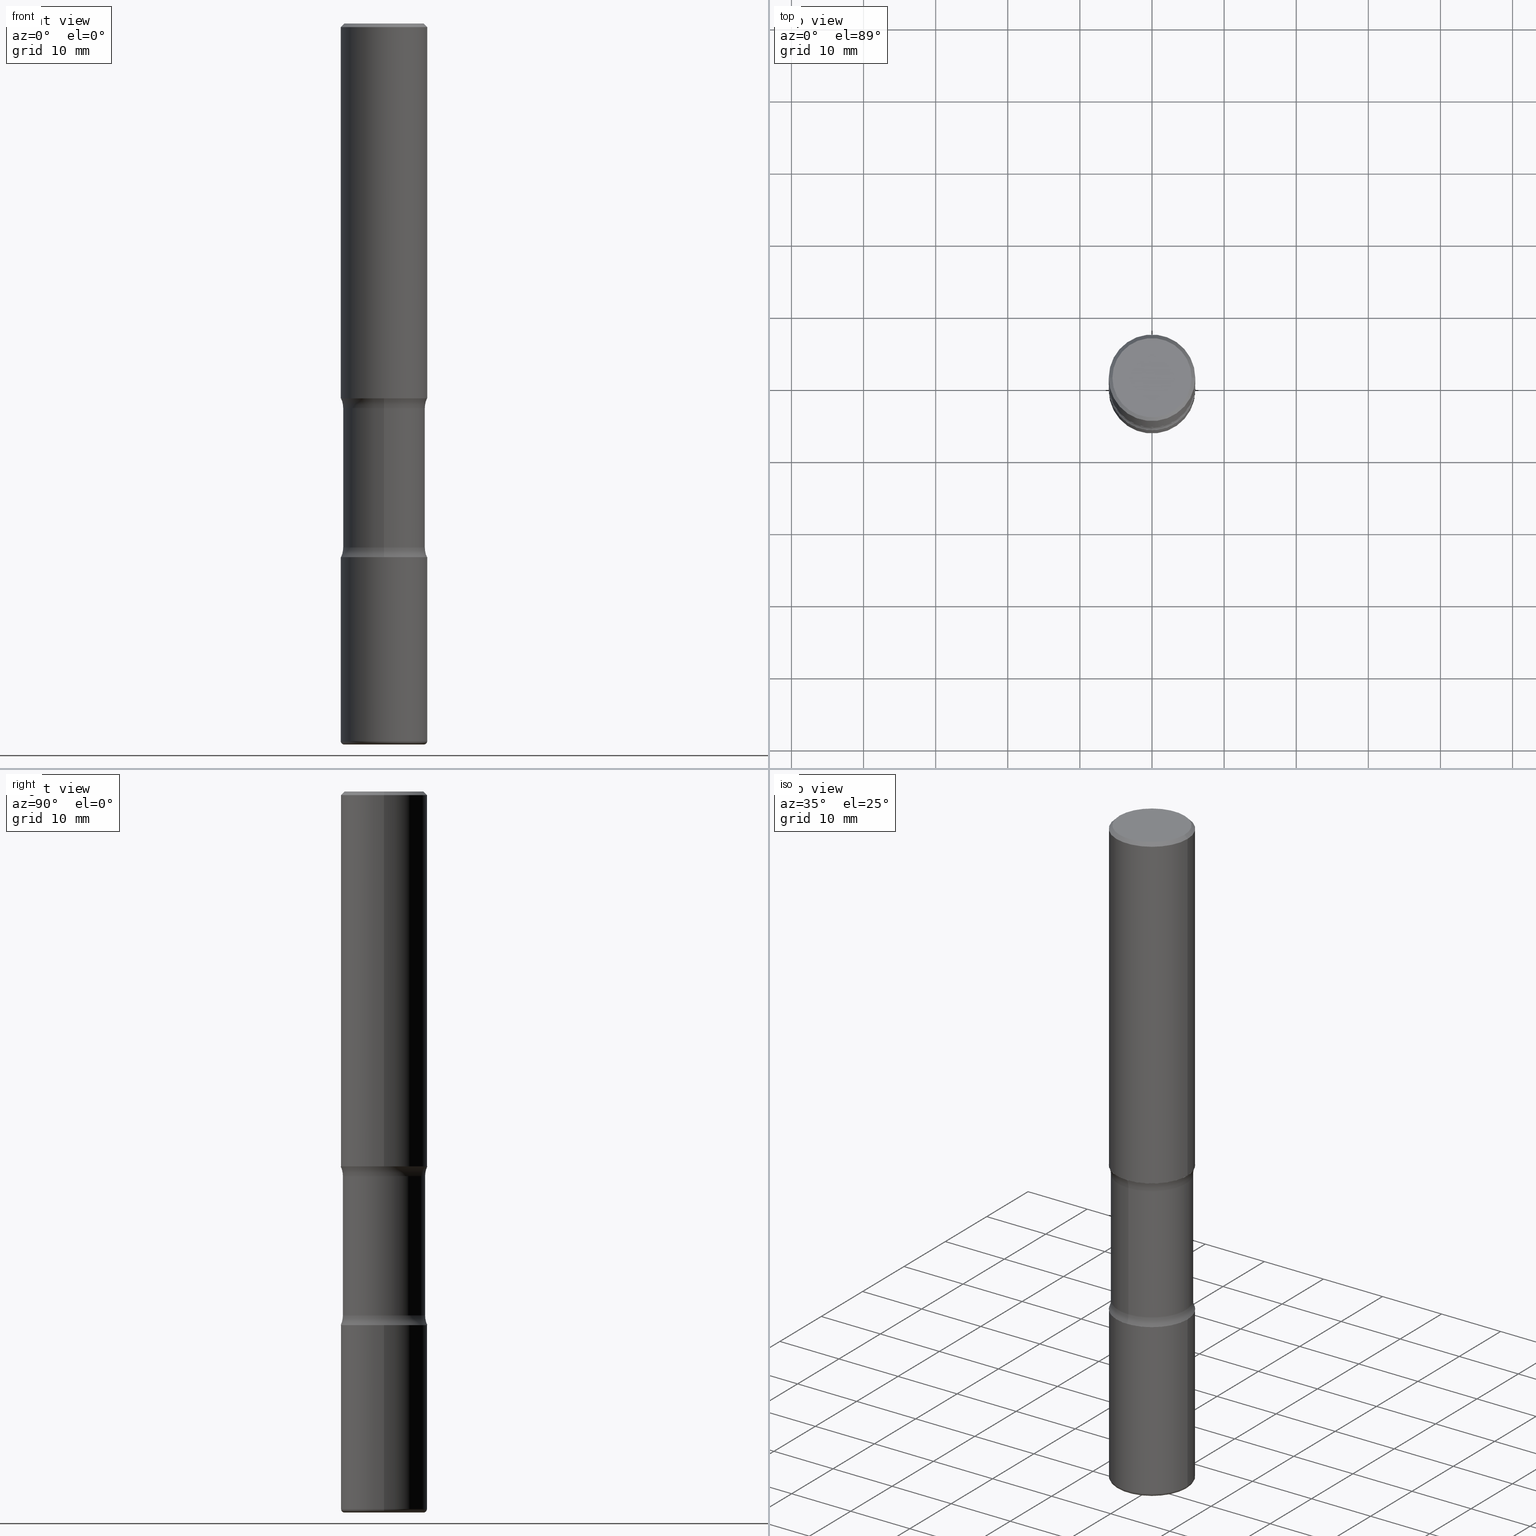
[diagram: canonical four-view strip — front | top / right | iso, engineering-drawing reading convention]
A machine part, canonical four-view strip (front | top / right | iso — engineering-drawing reading convention). The complete STEP part file that produces these views, byte-faithful:
ISO-10303-21;
HEADER;
FILE_DESCRIPTION (( 'STEP AP203' ),
    '1' );
FILE_NAME ('47690.STEP',
    '2024-03-02T07:14:34',
    ( '' ),
    ( '' ),
    'SwSTEP 2.0',
    'SolidWorks 2023',
    '' );
FILE_SCHEMA (( 'CONFIG_CONTROL_DESIGN' ));
ENDSEC;

DATA;
#1 = CARTESIAN_POINT ( 'NONE',  ( 7.124628819939777829E-29, -1.017208173258562247E-14, -2.913400000000000212 ) ) ;
#2 = ORIENTED_EDGE ( 'NONE', *, *, #36, .T. ) ;
#3 = PERSON_AND_ORGANIZATION_ROLE ( 'classification_officer' ) ;
#4 = ORIENTED_EDGE ( 'NONE', *, *, #546, .T. ) ;
#5 = DIRECTION ( 'NONE',  ( 2.525985086076564115E-29, -3.376177443336566513E-15, -1.000000000000000000 ) ) ;
#6 = TOROIDAL_SURFACE ( 'NONE', #91, 0.3493999999999999884, 0.1250000000000000000 ) ;
#7 = CIRCLE ( 'NONE', #21, 0.2361999999999998823 ) ;
#8 = VERTEX_POINT ( 'NONE', #67 ) ;
#9 = ADVANCED_FACE ( 'NONE', ( #461 ), #27, .T. ) ;
#10 = DIRECTION ( 'NONE',  ( -2.445468806185136597E-29, 3.491481338843145583E-15, 1.000000000000000000 ) ) ;
#11 = CARTESIAN_POINT ( 'NONE',  ( -0.2165000000000001368, -1.210325745744487227E-14, -3.937000000000000277 ) ) ;
#12 = DIRECTION ( 'NONE',  ( 6.982962677686265922E-15, 1.000000000000000000, -3.469747663417773452E-15 ) ) ;
#13 = ORIENTED_EDGE ( 'NONE', *, *, #554, .F. ) ;
#14 = DIRECTION ( 'NONE',  ( -2.445468806185136597E-29, 3.491481338843145583E-15, 1.000000000000000000 ) ) ;
#15 = APPROVAL_ROLE ( '' ) ;
#16 = DIRECTION ( 'NONE',  ( -2.445468806185136597E-29, 3.491481338843145583E-15, 1.000000000000000000 ) ) ;
#17 = CYLINDRICAL_SURFACE ( 'NONE', #130, 0.2362000000000001321 ) ;
#18 = VECTOR ( 'NONE', #499, 39.37007874015748143 ) ;
#19 = DIRECTION ( 'NONE',  ( 1.000000000000000000, -6.982962677686262766E-15, 0.000000000000000000 ) ) ;
#20 = CIRCLE ( 'NONE', #140, 0.2362000000000001321 ) ;
#21 = AXIS2_PLACEMENT_3D ( 'NONE', #92, #16, #356 ) ;
#22 = ORIENTED_EDGE ( 'NONE', *, *, #134, .T. ) ;
#23 = PLANE ( 'NONE',  #65 ) ;
#24 = DIRECTION ( 'NONE',  ( 2.525985086076564115E-29, -3.376177443336566513E-15, -1.000000000000000000 ) ) ;
#25 = ADVANCED_FACE ( 'NONE', ( #37 ), #371, .T. ) ;
#26 = EDGE_LOOP ( 'NONE', ( #51, #399, #323, #192 ) ) ;
#27 = PLANE ( 'NONE',  #111 ) ;
#28 = CARTESIAN_POINT ( 'NONE',  ( 1.649375784469567917E-15, 0.2361999999999899458, -2.913400000000000656 ) ) ;
#29 = CARTESIAN_POINT ( 'NONE',  ( 9.710227154047748282E-29, -1.362793696358492956E-14, -3.937000000000000277 ) ) ;
#30 = CARTESIAN_POINT ( 'NONE',  ( 9.579634954469036932E-29, -1.367717984865025539E-14, -3.917300000000000448 ) ) ;
#31 = CIRCLE ( 'NONE', #423, 0.2362000000000001598 ) ;
#32 = SECURITY_CLASSIFICATION ( '', '', #206 ) ;
#33 = CARTESIAN_POINT ( 'NONE',  ( 6.994978375559792251E-29, -9.986975258939122984E-15, -2.860383398826405354 ) ) ;
#34 = EDGE_CURVE ( 'NONE', #427, #395, #387, .T. ) ;
#35 = PRODUCT_DEFINITION_SHAPE ( 'NONE', 'NONE',  #375 ) ;
#36 = EDGE_CURVE ( 'NONE', #237, #476, #327, .T. ) ;
#37 = FACE_OUTER_BOUND ( 'NONE', #411, .T. ) ;
#38 = APPROVAL_STATUS ( 'not_yet_approved' ) ;
#39 = EDGE_CURVE ( 'NONE', #395, #155, #540, .T. ) ;
#40 = CIRCLE ( 'NONE', #359, 0.2361999999999998823 ) ;
#41 = LINE ( 'NONE', #208, #346 ) ;
#42 = DIRECTION ( 'NONE',  ( 1.000000000000000000, -6.982962677686268288E-15, 0.000000000000000000 ) ) ;
#43 = UNCERTAINTY_MEASURE_WITH_UNIT (LENGTH_MEASURE( 1.000000000000000082E-05 ), #77, 'distance_accuracy_value', 'NONE');
#44 = CALENDAR_DATE ( 2024, 2, 3 ) ;
#45 = AXIS2_PLACEMENT_3D ( 'NONE', #267, #98, #271 ) ;
#46 = AXIS2_PLACEMENT_3D ( 'NONE', #295, #514, #12 ) ;
#47 = EDGE_CURVE ( 'NONE', #464, #495, #248, .T. ) ;
#48 = CARTESIAN_POINT ( 'NONE',  ( 1.566976824872894642E-15, 0.2243999999999863049, -3.937000000000000721 ) ) ;
#49 = DIRECTION ( 'NONE',  ( 1.000000000000000000, -6.982962677686269077E-15, 0.000000000000000000 ) ) ;
#50 = FACE_OUTER_BOUND ( 'NONE', #455, .T. ) ;
#51 = ORIENTED_EDGE ( 'NONE', *, *, #467, .T. ) ;
#52 = APPROVAL_STATUS ( 'not_yet_approved' ) ;
#53 = EDGE_LOOP ( 'NONE', ( #312, #349 ) ) ;
#54 = ORIENTED_EDGE ( 'NONE', *, *, #34, .F. ) ;
#55 = ADVANCED_FACE ( 'NONE', ( #239 ), #23, .F. ) ;
#56 = AXIS2_PLACEMENT_3D ( 'NONE', #106, #14, #187 ) ;
#57 = DIRECTION ( 'NONE',  ( 2.525985086076564115E-29, -3.376177443336566513E-15, -1.000000000000000000 ) ) ;
#58 = ORIENTED_EDGE ( 'NONE', *, *, #168, .F. ) ;
#59 = CC_DESIGN_DATE_AND_TIME_ASSIGNMENT ( #350, #384, ( #32 ) ) ;
#60 = CARTESIAN_POINT ( 'NONE',  ( 9.627810689950883669E-29, -1.374596203102546341E-14, -3.937000000000000277 ) ) ;
#61 = ORIENTED_EDGE ( 'NONE', *, *, #202, .T. ) ;
#62 = CARTESIAN_POINT ( 'NONE',  ( 7.124628819939777829E-29, -1.017208173258562247E-14, -2.913400000000000212 ) ) ;
#63 = VERTEX_POINT ( 'NONE', #144 ) ;
#64 = DIRECTION ( 'NONE',  ( 6.982962677686265922E-15, 1.000000000000000000, -3.469747663417773452E-15 ) ) ;
#65 = AXIS2_PLACEMENT_3D ( 'NONE', #195, #539, #421 ) ;
#66 = AXIS2_PLACEMENT_3D ( 'NONE', #280, #24, #64 ) ;
#67 = CARTESIAN_POINT ( 'NONE',  ( 1.649375784469546815E-15, 0.2361999999999930266, -2.047200000000001019 ) ) ;
#68 = LINE ( 'NONE', #236, #119 ) ;
#69 = DIRECTION ( 'NONE',  ( 1.000000000000000000, -6.982962677686269077E-15, 0.000000000000000000 ) ) ;
#70 = DIRECTION ( 'NONE',  ( 6.982962677686265922E-15, 1.000000000000000000, -2.313165108945183485E-15 ) ) ;
#71 = CARTESIAN_POINT ( 'NONE',  ( 0.000000000000000000, 0.000000000000000000, 0.000000000000000000 ) ) ;
#72 = ADVANCED_FACE ( 'NONE', ( #225 ), #404, .T. ) ;
#73 = FACE_OUTER_BOUND ( 'NONE', #115, .T. ) ;
#74 = AXIS2_PLACEMENT_3D ( 'NONE', #71, #394, #352 ) ;
#75 = AXIS2_PLACEMENT_3D ( 'NONE', #553, #79, #19 ) ;
#76 = CC_DESIGN_APPROVAL ( #170, ( #414 ) ) ;
#77 =( CONVERSION_BASED_UNIT ( 'INCH', #207 ) LENGTH_UNIT ( ) NAMED_UNIT ( #324 ) );
#78 = EDGE_CURVE ( 'NONE', #138, #63, #379, .T. ) ;
#79 = DIRECTION ( 'NONE',  ( -2.445468806185136597E-29, 3.491481338843145583E-15, 1.000000000000000000 ) ) ;
#80 = DATE_AND_TIME ( #44, #501 ) ;
#81 = AXIS2_PLACEMENT_3D ( 'NONE', #341, #10, #147 ) ;
#82 = AXIS2_PLACEMENT_3D ( 'NONE', #466, #203, #437 ) ;
#83 = PLANE ( 'NONE',  #541 ) ;
#84 = COORDINATED_UNIVERSAL_TIME_OFFSET ( 5, 0, .BEHIND. ) ;
#85 = APPLICATION_PROTOCOL_DEFINITION ( 'international standard', 'config_control_design', 1994, #87 ) ;
#86 = FACE_OUTER_BOUND ( 'NONE', #334, .T. ) ;
#87 = APPLICATION_CONTEXT ( 'configuration controlled 3d designs of mechanical parts and assemblies' ) ;
#88 = ORIENTED_EDGE ( 'NONE', *, *, #494, .T. ) ;
#89 = PERSON_AND_ORGANIZATION ( #194, #200 ) ;
#90 = CARTESIAN_POINT ( 'NONE',  ( 7.124628819939777829E-29, -1.017208173258562247E-14, -2.913400000000000212 ) ) ;
#91 = AXIS2_PLACEMENT_3D ( 'NONE', #33, #5, #183 ) ;
#92 = CARTESIAN_POINT ( 'NONE',  ( 4.890937612370289799E-31, -6.982962677686315028E-17, -0.02000000000000006981 ) ) ;
#93 = ORIENTED_EDGE ( 'NONE', *, *, #274, .T. ) ;
#94 = ADVANCED_FACE ( 'NONE', ( #288 ), #215, .T. ) ;
#95 = DIRECTION ( 'NONE',  ( 2.525985086076564115E-29, -3.376177443336566513E-15, -1.000000000000000000 ) ) ;
#96 = ORIENTED_EDGE ( 'NONE', *, *, #490, .F. ) ;
#97 = COORDINATED_UNIVERSAL_TIME_OFFSET ( 5, 0, .BEHIND. ) ;
#98 = DIRECTION ( 'NONE',  ( 7.105427357601001859E-15, 1.000000000000000000, -3.491481338843145583E-15 ) ) ;
#99 = DIRECTION ( 'NONE',  ( 2.445468806185136597E-29, -3.491481338843145583E-15, -1.000000000000000000 ) ) ;
#100 = PLANE ( 'NONE',  #104 ) ;
#101 = DIRECTION ( 'NONE',  ( -2.445468806185136877E-29, 3.491481338843145188E-15, 1.000000000000000000 ) ) ;
#102 = ORIENTED_EDGE ( 'NONE', *, *, #531, .F. ) ;
#103 = VECTOR ( 'NONE', #229, 39.37007874015748143 ) ;
#104 = AXIS2_PLACEMENT_3D ( 'NONE', #358, #127, #470 ) ;
#105 =( LENGTH_UNIT ( ) NAMED_UNIT ( * ) SI_UNIT ( $, .METRE. ) );
#106 = CARTESIAN_POINT ( 'NONE',  ( 9.579634954469036932E-29, -1.367717984865025539E-14, -3.917300000000000448 ) ) ;
#107 = PERSON_AND_ORGANIZATION_ROLE ( 'design_owner' ) ;
#108 = EDGE_CURVE ( 'NONE', #448, #237, #329, .T. ) ;
#109 = DIRECTION ( 'NONE',  ( 2.438088387897960049E-29, -3.491481338843145188E-15, -1.000000000000000000 ) ) ;
#110 = DIRECTION ( 'NONE',  ( 2.525985086076564115E-29, -3.376177443336566513E-15, -1.000000000000000000 ) ) ;
#111 = AXIS2_PLACEMENT_3D ( 'NONE', #505, #109, #429 ) ;
#112 = VECTOR ( 'NONE', #382, 39.37007874015748143 ) ;
#113 = CC_DESIGN_APPROVAL ( #426, ( #32 ) ) ;
#114 = CALENDAR_DATE ( 2024, 2, 3 ) ;
#115 = EDGE_LOOP ( 'NONE', ( #519, #392, #487, #242 ) ) ;
#116 = EDGE_CURVE ( 'NONE', #138, #265, #291, .T. ) ;
#117 = CARTESIAN_POINT ( 'NONE',  ( 0.2361999999999998823, -1.690279253850498179E-15, -0.02000000000000006981 ) ) ;
#118 = FACE_OUTER_BOUND ( 'NONE', #360, .T. ) ;
#119 = VECTOR ( 'NONE', #370, 39.37007874015748143 ) ;
#120 = EDGE_LOOP ( 'NONE', ( #150, #273 ) ) ;
#121 = APPROVAL_PERSON_ORGANIZATION ( #299, #426, #214 ) ;
#122 = CARTESIAN_POINT ( 'NONE',  ( -2.397058000421320660E-15, -0.3494000000000072048, -2.100216601173594544 ) ) ;
#123 = DIRECTION ( 'NONE',  ( 6.860497997771529985E-15, 1.000000000000000000, 0.000000000000000000 ) ) ;
#124 = DIRECTION ( 'NONE',  ( -6.982962677686265922E-15, -1.000000000000000000, 3.376177443336566513E-15 ) ) ;
#125 = ADVANCED_FACE ( 'NONE', ( #301 ), #506, .F. ) ;
#126 = PERSON_AND_ORGANIZATION ( #194, #200 ) ;
#127 = DIRECTION ( 'NONE',  ( -2.438088387897960049E-29, 3.491481338843145188E-15, 1.000000000000000000 ) ) ;
#128 = CARTESIAN_POINT ( 'NONE',  ( 0.2362000000000001321, -1.649375784469497117E-15, 1.151752954443000789E-29 ) ) ;
#129 = CARTESIAN_POINT ( 'NONE',  ( -1.579972688886734072E-15, -0.2244000000000073713, -2.100216601173594544 ) ) ;
#130 = AXIS2_PLACEMENT_3D ( 'NONE', #367, #533, #153 ) ;
#131 = DIRECTION ( 'NONE',  ( 6.982962677686265922E-15, 1.000000000000000000, -3.376177443336566513E-15 ) ) ;
#132 = EDGE_CURVE ( 'NONE', #265, #401, #220, .T. ) ;
#133 = VERTEX_POINT ( 'NONE', #272 ) ;
#134 = EDGE_CURVE ( 'NONE', #385, #268, #388, .T. ) ;
#135 = CARTESIAN_POINT ( 'NONE',  ( 0.000000000000000000, 0.000000000000000000, 0.000000000000000000 ) ) ;
#136 = ORIENTED_EDGE ( 'NONE', *, *, #234, .T. ) ;
#137 = CARTESIAN_POINT ( 'NONE',  ( 5.006363740022212241E-29, -7.147760596879688202E-15, -2.047200000000000131 ) ) ;
#138 = VERTEX_POINT ( 'NONE', #11 ) ;
#139 = AXIS2_PLACEMENT_3D ( 'NONE', #340, #99, #245 ) ;
#140 = AXIS2_PLACEMENT_3D ( 'NONE', #62, #412, #69 ) ;
#141 = AXIS2_PLACEMENT_3D ( 'NONE', #321, #431, #551 ) ;
#142 = EDGE_CURVE ( 'NONE', #133, #401, #435, .T. ) ;
#143 = ORIENTED_EDGE ( 'NONE', *, *, #173, .T. ) ;
#144 = CARTESIAN_POINT ( 'NONE',  ( 0.2165000000000001368, -1.525777345074454073E-14, -3.937000000000000277 ) ) ;
#145 = DIRECTION ( 'NONE',  ( 6.982962677686265922E-15, 1.000000000000000000, -3.376177443336566513E-15 ) ) ;
#146 = ORIENTED_EDGE ( 'NONE', *, *, #362, .T. ) ;
#147 = DIRECTION ( 'NONE',  ( 1.000000000000000000, -6.982962677686269077E-15, 0.000000000000000000 ) ) ;
#148 = DIRECTION ( 'NONE',  ( 0.000000000000000000, 0.000000000000000000, 1.000000000000000000 ) ) ;
#149 = CC_DESIGN_PERSON_AND_ORGANIZATION_ASSIGNMENT ( #524, #252, ( #414 ) ) ;
#150 = ORIENTED_EDGE ( 'NONE', *, *, #467, .F. ) ;
#151 = PERSON_AND_ORGANIZATION ( #194, #200 ) ;
#152 = ORIENTED_EDGE ( 'NONE', *, *, #290, .F. ) ;
#153 = DIRECTION ( 'NONE',  ( 1.000000000000000000, -6.982962677686266711E-15, 4.876176775795936353E-29 ) ) ;
#154 = TOROIDAL_SURFACE ( 'NONE', #174, 0.2165000000000001368, 0.01969999999999991203 ) ;
#155 = VERTEX_POINT ( 'NONE', #255 ) ;
#156 = CARTESIAN_POINT ( 'NONE',  ( -1.043851414335219820E-46, 1.490343170380447200E-32, 4.268512490100411279E-18 ) ) ;
#157 = CARTESIAN_POINT ( 'NONE',  ( 0.000000000000000000, 0.000000000000000000, 0.000000000000000000 ) ) ;
#158 = DIRECTION ( 'NONE',  ( 1.000000000000000000, -6.982962677686266711E-15, 4.876217060660159599E-29 ) ) ;
#159 = DIRECTION ( 'NONE',  ( 6.982962677686265922E-15, 1.000000000000000000, -2.434802133390609421E-15 ) ) ;
#160 = ADVANCED_FACE ( 'NONE', ( #442 ), #154, .T. ) ;
#161 = AXIS2_PLACEMENT_3D ( 'NONE', #30, #169, #525 ) ;
#162 = CARTESIAN_POINT ( 'NONE',  ( 0.2165000000000001368, -1.518899126836933270E-14, -3.917300000000000448 ) ) ;
#163 = ORIENTED_EDGE ( 'NONE', *, *, #116, .F. ) ;
#164 = MANIFOLD_SOLID_BREP ( 'Body-Move/Copy2[2]', #547 ) ;
#165 = CARTESIAN_POINT ( 'NONE',  ( 4.890937612370289799E-31, -6.982962677686315028E-17, -0.02000000000000006981 ) ) ;
#166 = CIRCLE ( 'NONE', #369, 0.1249999999999999029 ) ;
#167 = CC_DESIGN_SECURITY_CLASSIFICATION ( #32, ( #414 ) ) ;
#168 = EDGE_CURVE ( 'NONE', #395, #427, #400, .T. ) ;
#169 = DIRECTION ( 'NONE',  ( -2.445468806185136597E-29, 3.491481338843145583E-15, 1.000000000000000000 ) ) ;
#170 = APPROVAL ( #52, 'UNSPECIFIED' ) ;
#171 = PLANE ( 'NONE',  #241 ) ;
#172 = CARTESIAN_POINT ( 'NONE',  ( 5.006363740022212241E-29, -7.147760596879688202E-15, -2.047200000000000131 ) ) ;
#173 = EDGE_CURVE ( 'NONE', #495, #213, #472, .T. ) ;
#174 = AXIS2_PLACEMENT_3D ( 'NONE', #560, #526, #481 ) ;
#175 = ORIENTED_EDGE ( 'NONE', *, *, #196, .F. ) ;
#176 = PERSON_AND_ORGANIZATION_ROLE ( 'creator' ) ;
#177 = CARTESIAN_POINT ( 'NONE',  ( 9.710227154047748282E-29, -1.362793696358492956E-14, -3.937000000000000277 ) ) ;
#178 = ORIENTED_EDGE ( 'NONE', *, *, #188, .F. ) ;
#179 = CALENDAR_DATE ( 2024, 2, 3 ) ;
#180 = DIRECTION ( 'NONE',  ( -2.445468806185136597E-29, 3.491481338843145583E-15, 1.000000000000000000 ) ) ;
#181 = ORIENTED_EDGE ( 'NONE', *, *, #193, .T. ) ;
#182 = CARTESIAN_POINT ( 'NONE',  ( 0.2362000000000001321, -8.797136381349186305E-15, -2.047200000000000131 ) ) ;
#183 = DIRECTION ( 'NONE',  ( 6.982962677686265922E-15, 1.000000000000000000, -3.376177443336566513E-15 ) ) ;
#184 = LOCAL_TIME ( 2, 14, 34.00000000000000000, #509 ) ;
#185 = ORIENTED_EDGE ( 'NONE', *, *, #132, .T. ) ;
#186 = ORIENTED_EDGE ( 'NONE', *, *, #274, .F. ) ;
#187 = DIRECTION ( 'NONE',  ( 1.000000000000000000, -6.982962677686270655E-15, 4.883557194083114583E-29 ) ) ;
#188 = EDGE_CURVE ( 'NONE', #8, #407, #444, .T. ) ;
#189 = ORIENTED_EDGE ( 'NONE', *, *, #494, .F. ) ;
#190 = AXIS2_PLACEMENT_3D ( 'NONE', #177, #351, #343 ) ;
#191 = DIRECTION ( 'NONE',  ( -2.445468806185136597E-29, 3.491481338843145583E-15, 1.000000000000000000 ) ) ;
#192 = ORIENTED_EDGE ( 'NONE', *, *, #296, .F. ) ;
#193 = EDGE_CURVE ( 'NONE', #448, #155, #417, .T. ) ;
#194 = PERSON ( 'UNSPECIFIED', 'UNSPECIFIED', 'UNSPECIFIED', ('UNSPECIFIED'), ('UNSPECIFIED'), ('UNSPECIFIED') ) ;
#195 = CARTESIAN_POINT ( 'NONE',  ( 7.124628819939777829E-29, -1.017208173258562247E-14, -2.913400000000000212 ) ) ;
#196 = EDGE_CURVE ( 'NONE', #401, #133, #20, .T. ) ;
#197 = APPLICATION_CONTEXT ( 'configuration controlled 3d designs of mechanical parts and assemblies' ) ;
#198 = AXIS2_PLACEMENT_3D ( 'NONE', #60, #191, #238 ) ;
#199 = CIRCLE ( 'NONE', #337, 0.01969999999999992937 ) ;
#200 = ORGANIZATION ( 'UNSPECIFIED', 'UNSPECIFIED', '' ) ;
#201 = LINE ( 'NONE', #128, #112 ) ;
#202 = EDGE_CURVE ( 'NONE', #478, #265, #380, .T. ) ;
#203 = DIRECTION ( 'NONE',  ( -2.445468806185136597E-29, 3.491481338843145583E-15, 1.000000000000000000 ) ) ;
#204 = CARTESIAN_POINT ( 'NONE',  ( 1.566976824872848494E-15, 0.2243999999999925499, -2.100216601173596320 ) ) ;
#205 = AXIS2_PLACEMENT_3D ( 'NONE', #396, #390, #422 ) ;
#206 = SECURITY_CLASSIFICATION_LEVEL ( 'unclassified' ) ;
#207 = LENGTH_MEASURE_WITH_UNIT ( LENGTH_MEASURE( 0.02539999999999999897 ), #105 );
#208 = CARTESIAN_POINT ( 'NONE',  ( -1.539495750699834052E-15, -0.2244000000000135608, -3.936999999999999389 ) ) ;
#209 = ORIENTED_EDGE ( 'NONE', *, *, #193, .F. ) ;
#210 = EDGE_CURVE ( 'NONE', #237, #448, #284, .T. ) ;
#211 = FACE_OUTER_BOUND ( 'NONE', #522, .T. ) ;
#212 = ORIENTED_EDGE ( 'NONE', *, *, #47, .T. ) ;
#213 = VERTEX_POINT ( 'NONE', #441 ) ;
#214 = APPROVAL_ROLE ( '' ) ;
#215 = CONICAL_SURFACE ( 'NONE', #139, 0.2361999999999998823, 0.7853981633974479459 ) ;
#216 = CIRCLE ( 'NONE', #535, 0.1250000000000000000 ) ;
#217 = AXIS2_PLACEMENT_3D ( 'NONE', #157, #148, #247 ) ;
#218 = DIRECTION ( 'NONE',  ( -2.445468806185136597E-29, 3.491481338843145583E-15, 1.000000000000000000 ) ) ;
#219 = DIRECTION ( 'NONE',  ( 2.525985086076564115E-29, -3.376177443336566513E-15, -1.000000000000000000 ) ) ;
#220 = LINE ( 'NONE', #269, #345 ) ;
#221 = ORIENTED_EDGE ( 'NONE', *, *, #398, .T. ) ;
#222 = CARTESIAN_POINT ( 'NONE',  ( -1.620449627073587747E-15, -0.2362000000000074318, -2.047199999999999243 ) ) ;
#223 = AXIS2_PLACEMENT_3D ( 'NONE', #497, #322, #331 ) ;
#224 =( GEOMETRIC_REPRESENTATION_CONTEXT ( 3 ) GLOBAL_UNCERTAINTY_ASSIGNED_CONTEXT ( ( #43 ) ) GLOBAL_UNIT_ASSIGNED_CONTEXT ( ( #77, #548, #332 ) ) REPRESENTATION_CONTEXT ( 'NONE', 'WORKASPACE' ) );
#225 = FACE_OUTER_BOUND ( 'NONE', #317, .T. ) ;
#226 = ADVANCED_FACE ( 'NONE', ( #393 ), #307, .T. ) ;
#227 = ORIENTED_EDGE ( 'NONE', *, *, #78, .T. ) ;
#228 = APPROVAL ( #38, 'UNSPECIFIED' ) ;
#229 = DIRECTION ( 'NONE',  ( -2.445468806185136877E-29, 3.491481338843145188E-15, 1.000000000000000000 ) ) ;
#230 = ADVANCED_BREP_SHAPE_REPRESENTATION ( '47690', ( #523, #164, #520, #217 ), #224 ) ;
#231 = CIRCLE ( 'NONE', #298, 0.2362000000000001321 ) ;
#232 = AXIS2_PLACEMENT_3D ( 'NONE', #135, #314, #482 ) ;
#233 = CARTESIAN_POINT ( 'NONE',  ( 0.2362000000000001321, -1.532655563311975191E-14, -3.917300000000000448 ) ) ;
#234 = EDGE_CURVE ( 'NONE', #155, #476, #40, .T. ) ;
#235 = DIRECTION ( 'NONE',  ( 0.7071067811865472397, -7.319954787623254468E-15, -0.7071067811865477948 ) ) ;
#236 = CARTESIAN_POINT ( 'NONE',  ( -0.2361999999999998823, 1.579546157692632438E-15, -0.02000000000000006981 ) ) ;
#237 = VERTEX_POINT ( 'NONE', #510 ) ;
#238 = DIRECTION ( 'NONE',  ( 1.000000000000000000, -6.982962677686262766E-15, 0.000000000000000000 ) ) ;
#239 = FACE_OUTER_BOUND ( 'NONE', #270, .T. ) ;
#240 = CLOSED_SHELL ( 'NONE', ( #25, #326, #496, #125, #389, #378, #544, #226 ) ) ;
#241 = AXIS2_PLACEMENT_3D ( 'NONE', #305, #302, #545 ) ;
#242 = ORIENTED_EDGE ( 'NONE', *, *, #173, .F. ) ;
#243 = ORIENTED_EDGE ( 'NONE', *, *, #196, .T. ) ;
#244 = DIRECTION ( 'NONE',  ( -1.000000000000000000, 6.982962677686267499E-15, 0.000000000000000000 ) ) ;
#245 = DIRECTION ( 'NONE',  ( -1.000000000000000000, 6.982962677686267499E-15, 0.000000000000000000 ) ) ;
#246 = CARTESIAN_POINT ( 'NONE',  ( 2.439847159583631044E-15, 0.3493999999999924388, -2.100216601173596320 ) ) ;
#247 = DIRECTION ( 'NONE',  ( 1.000000000000000000, 0.000000000000000000, 0.000000000000000000 ) ) ;
#248 = CIRCLE ( 'NONE', #410, 0.2362000000000001321 ) ;
#249 = DIRECTION ( 'NONE',  ( 2.525985086076564115E-29, -3.376177443336566513E-15, -1.000000000000000000 ) ) ;
#250 = AXIS2_PLACEMENT_3D ( 'NONE', #246, #293, #552 ) ;
#251 = EDGE_CURVE ( 'NONE', #265, #478, #31, .T. ) ;
#252 = PERSON_AND_ORGANIZATION_ROLE ( 'design_supplier' ) ;
#253 = ORIENTED_EDGE ( 'NONE', *, *, #432, .F. ) ;
#254 = COORDINATED_UNIVERSAL_TIME_OFFSET ( 5, 0, .BEHIND. ) ;
#255 = CARTESIAN_POINT ( 'NONE',  ( 0.2361999999999998823, -1.690279253850498179E-15, -0.02000000000000006981 ) ) ;
#256 = PERSON_AND_ORGANIZATION ( #194, #200 ) ;
#257 = ORIENTED_EDGE ( 'NONE', *, *, #132, .F. ) ;
#258 = EDGE_LOOP ( 'NONE', ( #152, #556, #383, #308 ) ) ;
#259 = PERSON_AND_ORGANIZATION ( #194, #200 ) ;
#260 = AXIS2_PLACEMENT_3D ( 'NONE', #446, #485, #145 ) ;
#261 = LOCAL_TIME ( 2, 14, 34.00000000000000000, #84 ) ;
#262 = ORIENTED_EDGE ( 'NONE', *, *, #39, .T. ) ;
#263 = ADVANCED_FACE ( 'NONE', ( #335 ), #500, .T. ) ;
#264 = CALENDAR_DATE ( 2024, 2, 3 ) ;
#265 = VERTEX_POINT ( 'NONE', #430 ) ;
#266 = ORIENTED_EDGE ( 'NONE', *, *, #234, .F. ) ;
#267 = CARTESIAN_POINT ( 'NONE',  ( -0.2165000000000001368, -1.213885482572963751E-14, -3.917300000000000448 ) ) ;
#268 = VERTEX_POINT ( 'NONE', #204 ) ;
#269 = CARTESIAN_POINT ( 'NONE',  ( -0.2362000000000001321, 1.678301941865357577E-15, -1.161852468318209457E-29 ) ) ;
#270 = EDGE_LOOP ( 'NONE', ( #391, #243 ) ) ;
#271 = DIRECTION ( 'NONE',  ( -1.000000000000000000, 7.105427357600952949E-15, 0.000000000000000000 ) ) ;
#272 = CARTESIAN_POINT ( 'NONE',  ( 0.2362000000000001321, -1.182145751705511899E-14, -2.913400000000000212 ) ) ;
#273 = ORIENTED_EDGE ( 'NONE', *, *, #78, .F. ) ;
#274 = EDGE_CURVE ( 'NONE', #478, #133, #201, .T. ) ;
#275 = TOROIDAL_SURFACE ( 'NONE', #56, 0.2165000000000001368, 0.01969999999999991203 ) ;
#276 = APPROVAL_PERSON_ORGANIZATION ( #151, #228, #15 ) ;
#277 = EDGE_LOOP ( 'NONE', ( #397, #54, #88, #557 ) ) ;
#278 = CARTESIAN_POINT ( 'NONE',  ( -0.2161999999999998368, 1.544631344304201183E-15, 4.268512490089730842E-18 ) ) ;
#279 = CARTESIAN_POINT ( 'NONE',  ( -1.620449627073565067E-15, -0.2362000000000102629, -2.913399999999999768 ) ) ;
#280 = CARTESIAN_POINT ( 'NONE',  ( 4.936620538380257512E-29, -7.247636831167487464E-15, -2.047200000000000131 ) ) ;
#281 = DIRECTION ( 'NONE',  ( 6.982962677686265922E-15, 1.000000000000000000, -3.376177443336566513E-15 ) ) ;
#282 = CARTESIAN_POINT ( 'NONE',  ( -0.2361999999999998823, 1.579546157692632438E-15, -0.02000000000000006981 ) ) ;
#283 = CARTESIAN_POINT ( 'NONE',  ( -0.2361999999999999933, 1.678301941865356591E-15, -1.161852468318208757E-29 ) ) ;
#284 = CIRCLE ( 'NONE', #463, 0.2362000000000001321 ) ;
#285 = DIRECTION ( 'NONE',  ( -2.445468806185136597E-29, 3.491481338843145583E-15, 1.000000000000000000 ) ) ;
#286 = CARTESIAN_POINT ( 'NONE',  ( 7.124628819939777829E-29, -1.017208173258562247E-14, -2.913400000000000212 ) ) ;
#287 = DIRECTION ( 'NONE',  ( -6.982962677686266711E-15, -1.000000000000000000, 3.491481338843145583E-15 ) ) ;
#288 = FACE_OUTER_BOUND ( 'NONE', #443, .T. ) ;
#289 = ORIENTED_EDGE ( 'NONE', *, *, #251, .T. ) ;
#290 = EDGE_CURVE ( 'NONE', #385, #407, #166, .T. ) ;
#291 = CIRCLE ( 'NONE', #45, 0.01969999999999992937 ) ;
#292 = CIRCLE ( 'NONE', #46, 0.2362000000000002431 ) ;
#293 = DIRECTION ( 'NONE',  ( -1.000000000000000000, 6.982962677686265922E-15, -4.883557194083112340E-29 ) ) ;
#294 = CARTESIAN_POINT ( 'NONE',  ( -2.397058000421302516E-15, -0.3494000000000099249, -2.860383398826404022 ) ) ;
#295 = CARTESIAN_POINT ( 'NONE',  ( 4.936620538380257512E-29, -7.247636831167487464E-15, -2.047200000000000131 ) ) ;
#296 = EDGE_CURVE ( 'NONE', #63, #478, #199, .T. ) ;
#297 = CARTESIAN_POINT ( 'NONE',  ( 9.579634954469036932E-29, -1.367717984865025539E-14, -3.917300000000000448 ) ) ;
#298 = AXIS2_PLACEMENT_3D ( 'NONE', #386, #361, #537 ) ;
#299 = PERSON_AND_ORGANIZATION ( #194, #200 ) ;
#300 = CC_DESIGN_APPROVAL ( #228, ( #375 ) ) ;
#301 = FACE_OUTER_BOUND ( 'NONE', #258, .T. ) ;
#302 = DIRECTION ( 'NONE',  ( 2.438088387897960049E-29, -3.491481338843145188E-15, -1.000000000000000000 ) ) ;
#303 = ORIENTED_EDGE ( 'NONE', *, *, #398, .F. ) ;
#304 = DATE_AND_TIME ( #179, #261 ) ;
#305 = CARTESIAN_POINT ( 'NONE',  ( 1.509716530915769534E-15, 0.2161999999999998368, -7.527240092128373149E-16 ) ) ;
#306 = COORDINATED_UNIVERSAL_TIME_OFFSET ( 5, 0, .BEHIND. ) ;
#307 = CYLINDRICAL_SURFACE ( 'NONE', #190, 0.2243999999999999329 ) ;
#308 = ORIENTED_EDGE ( 'NONE', *, *, #188, .T. ) ;
#309 = APPROVAL_ROLE ( '' ) ;
#310 = AXIS2_PLACEMENT_3D ( 'NONE', #29, #325, #538 ) ;
#311 = AXIS2_PLACEMENT_3D ( 'NONE', #328, #373, #459 ) ;
#312 = ORIENTED_EDGE ( 'NONE', *, *, #108, .F. ) ;
#313 = DIRECTION ( 'NONE',  ( 6.982962677686265922E-15, 1.000000000000000000, -3.376177443336566513E-15 ) ) ;
#314 = DIRECTION ( 'NONE',  ( -2.445468806185136597E-29, 3.491481338843145583E-15, 1.000000000000000000 ) ) ;
#315 = EDGE_LOOP ( 'NONE', ( #458, #22, #368, #253 ) ) ;
#316 = EDGE_CURVE ( 'NONE', #268, #8, #488, .T. ) ;
#317 = EDGE_LOOP ( 'NONE', ( #454, #2, #266, #209 ) ) ;
#318 = CLOSED_SHELL ( 'NONE', ( #512, #409, #9, #160, #420, #55 ) ) ;
#319 = CARTESIAN_POINT ( 'NONE',  ( 0.2361999999999999933, -1.649375784469496131E-15, 1.151752954443000088E-29 ) ) ;
#320 = AXIS2_PLACEMENT_3D ( 'NONE', #165, #543, #244 ) ;
#321 = CARTESIAN_POINT ( 'NONE',  ( 5.070539682259229331E-29, -7.426630284172150130E-15, -2.100216601173595432 ) ) ;
#322 = DIRECTION ( 'NONE',  ( 2.525985086076564115E-29, -3.376177443336566513E-15, -1.000000000000000000 ) ) ;
#323 = ORIENTED_EDGE ( 'NONE', *, *, #202, .F. ) ;
#324 = DIMENSIONAL_EXPONENTS ( 1.000000000000000000, 0.000000000000000000, 0.000000000000000000, 0.000000000000000000, 0.000000000000000000, 0.000000000000000000, 0.000000000000000000 ) ;
#325 = DIRECTION ( 'NONE',  ( 2.525985086076564115E-29, -3.376177443336566513E-15, -1.000000000000000000 ) ) ;
#326 = ADVANCED_FACE ( 'NONE', ( #73 ), #6, .F. ) ;
#327 = LINE ( 'NONE', #283, #18 ) ;
#328 = CARTESIAN_POINT ( 'NONE',  ( 2.439847159583651160E-15, 0.3493999999999899964, -2.860383398826406243 ) ) ;
#329 = CIRCLE ( 'NONE', #81, 0.2362000000000001321 ) ;
#330 = CC_DESIGN_PERSON_AND_ORGANIZATION_ASSIGNMENT ( #256, #107, ( #418 ) ) ;
#331 = DIRECTION ( 'NONE',  ( 6.982962677686265922E-15, 1.000000000000000000, -2.434802133390609421E-15 ) ) ;
#332 =( NAMED_UNIT ( * ) SI_UNIT ( $, .STERADIAN. ) SOLID_ANGLE_UNIT ( ) );
#333 = ADVANCED_FACE ( 'NONE', ( #118 ), #171, .F. ) ;
#334 = EDGE_LOOP ( 'NONE', ( #221, #212 ) ) ;
#335 = FACE_OUTER_BOUND ( 'NONE', #277, .T. ) ;
#336 = DIRECTION ( 'NONE',  ( 1.000000000000000000, -6.860497997771530774E-15, 4.842210945089756248E-29 ) ) ;
#337 = AXIS2_PLACEMENT_3D ( 'NONE', #162, #287, #462 ) ;
#338 = AXIS2_PLACEMENT_3D ( 'NONE', #491, #408, #313 ) ;
#339 = ADVANCED_FACE ( 'NONE', ( #471 ), #511, .T. ) ;
#340 = CARTESIAN_POINT ( 'NONE',  ( 4.890937612370289799E-31, -6.982962677686315028E-17, -0.02000000000000006981 ) ) ;
#341 = CARTESIAN_POINT ( 'NONE',  ( 5.006363740022212241E-29, -7.147760596879688202E-15, -2.047200000000000131 ) ) ;
#342 = DATE_AND_TIME ( #114, #381 ) ;
#343 = DIRECTION ( 'NONE',  ( 6.982962677686265922E-15, 1.000000000000000000, -2.434802133390609815E-15 ) ) ;
#344 = ORIENTED_EDGE ( 'NONE', *, *, #372, .F. ) ;
#345 = VECTOR ( 'NONE', #101, 39.37007874015748143 ) ;
#346 = VECTOR ( 'NONE', #95, 39.37007874015748143 ) ;
#347 = DATE_TIME_ROLE ( 'creation_date' ) ;
#348 = DIRECTION ( 'NONE',  ( -2.525985086076564115E-29, 3.376177443336566513E-15, 1.000000000000000000 ) ) ;
#349 = ORIENTED_EDGE ( 'NONE', *, *, #210, .F. ) ;
#350 = DATE_AND_TIME ( #513, #550 ) ;
#351 = DIRECTION ( 'NONE',  ( 2.525985086076564115E-29, -3.376177443336566513E-15, -1.000000000000000000 ) ) ;
#352 = DIRECTION ( 'NONE',  ( 1.000000000000000000, -6.982962677686266711E-15, 4.876176775795936353E-29 ) ) ;
#353 = CYLINDRICAL_SURFACE ( 'NONE', #232, 0.2362000000000001321 ) ;
#354 = ORIENTED_EDGE ( 'NONE', *, *, #251, .F. ) ;
#355 = APPROVAL_DATE_TIME ( #304, #170 ) ;
#356 = DIRECTION ( 'NONE',  ( 1.000000000000000000, -6.982962677686267499E-15, 0.000000000000000000 ) ) ;
#357 = DESIGN_CONTEXT ( 'detailed design', #197, 'design' ) ;
#358 = CARTESIAN_POINT ( 'NONE',  ( 5.006363740022212241E-29, -7.147760596879688202E-15, -2.047200000000000131 ) ) ;
#359 = AXIS2_PLACEMENT_3D ( 'NONE', #445, #180, #480 ) ;
#360 = EDGE_LOOP ( 'NONE', ( #489, #363 ) ) ;
#361 = DIRECTION ( 'NONE',  ( 2.525985086076564115E-29, -3.376177443336566513E-15, -1.000000000000000000 ) ) ;
#362 = EDGE_CURVE ( 'NONE', #385, #465, #41, .T. ) ;
#363 = ORIENTED_EDGE ( 'NONE', *, *, #168, .T. ) ;
#364 = CC_DESIGN_PERSON_AND_ORGANIZATION_ASSIGNMENT ( #259, #176, ( #414 ) ) ;
#365 = DIRECTION ( 'NONE',  ( -2.445468806185136597E-29, 3.491481338843145583E-15, 1.000000000000000000 ) ) ;
#366 = ORIENTED_EDGE ( 'NONE', *, *, #142, .F. ) ;
#367 = CARTESIAN_POINT ( 'NONE',  ( 0.000000000000000000, 0.000000000000000000, 0.000000000000000000 ) ) ;
#368 = ORIENTED_EDGE ( 'NONE', *, *, #554, .T. ) ;
#369 = AXIS2_PLACEMENT_3D ( 'NONE', #122, #336, #503 ) ;
#370 = DIRECTION ( 'NONE',  ( -0.7071067811865472397, 2.468850131082253905E-15, -0.7071067811865477948 ) ) ;
#371 = CYLINDRICAL_SURFACE ( 'NONE', #310, 0.2243999999999999329 ) ;
#372 = EDGE_CURVE ( 'NONE', #213, #465, #413, .T. ) ;
#373 = DIRECTION ( 'NONE',  ( -1.000000000000000000, 6.982962677686265922E-15, -4.883557194083112340E-29 ) ) ;
#374 = FACE_OUTER_BOUND ( 'NONE', #460, .T. ) ;
#375 = PRODUCT_DEFINITION ( 'UNKNOWN', '', #414, #357 ) ;
#376 = DIRECTION ( 'NONE',  ( -2.445468806185136597E-29, 3.491481338843145583E-15, 1.000000000000000000 ) ) ;
#377 = VECTOR ( 'NONE', #249, 39.37007874015748143 ) ;
#378 = ADVANCED_FACE ( 'NONE', ( #86 ), #83, .F. ) ;
#379 = CIRCLE ( 'NONE', #198, 0.2165000000000001368 ) ;
#380 = CIRCLE ( 'NONE', #161, 0.2362000000000001598 ) ;
#381 = LOCAL_TIME ( 2, 14, 34.00000000000000000, #97 ) ;
#382 = DIRECTION ( 'NONE',  ( -2.445468806185136877E-29, 3.491481338843145188E-15, 1.000000000000000000 ) ) ;
#383 = ORIENTED_EDGE ( 'NONE', *, *, #316, .T. ) ;
#384 = DATE_TIME_ROLE ( 'classification_date' ) ;
#385 = VERTEX_POINT ( 'NONE', #129 ) ;
#386 = CARTESIAN_POINT ( 'NONE',  ( 7.124628819939777829E-29, -1.017208173258562247E-14, -2.913400000000000212 ) ) ;
#387 = CIRCLE ( 'NONE', #433, 0.2161999999999998368 ) ;
#388 = CIRCLE ( 'NONE', #549, 0.2243999999999999606 ) ;
#389 = ADVANCED_FACE ( 'NONE', ( #211 ), #434, .F. ) ;
#390 = DIRECTION ( 'NONE',  ( -2.445468806185136597E-29, 3.491481338843145583E-15, 1.000000000000000000 ) ) ;
#391 = ORIENTED_EDGE ( 'NONE', *, *, #142, .T. ) ;
#392 = ORIENTED_EDGE ( 'NONE', *, *, #484, .T. ) ;
#393 = FACE_OUTER_BOUND ( 'NONE', #315, .T. ) ;
#394 = DIRECTION ( 'NONE',  ( -2.445468806185136597E-29, 3.491481338843145583E-15, 1.000000000000000000 ) ) ;
#395 = VERTEX_POINT ( 'NONE', #439 ) ;
#396 = CARTESIAN_POINT ( 'NONE',  ( -1.043851414335219820E-46, 1.490343170380447200E-32, 4.268512490100411279E-18 ) ) ;
#397 = ORIENTED_EDGE ( 'NONE', *, *, #39, .F. ) ;
#398 = EDGE_CURVE ( 'NONE', #495, #464, #231, .T. ) ;
#399 = ORIENTED_EDGE ( 'NONE', *, *, #116, .T. ) ;
#400 = CIRCLE ( 'NONE', #205, 0.2161999999999998368 ) ;
#401 = VERTEX_POINT ( 'NONE', #451 ) ;
#402 = FACE_OUTER_BOUND ( 'NONE', #26, .T. ) ;
#403 = EDGE_LOOP ( 'NONE', ( #504, #303, #143, #450 ) ) ;
#404 = CYLINDRICAL_SURFACE ( 'NONE', #74, 0.2361999999999999933 ) ;
#405 = DIRECTION ( 'NONE',  ( 6.982962677686265922E-15, 1.000000000000000000, -3.652203200085913934E-15 ) ) ;
#406 = FACE_OUTER_BOUND ( 'NONE', #486, .T. ) ;
#407 = VERTEX_POINT ( 'NONE', #222 ) ;
#408 = DIRECTION ( 'NONE',  ( 2.525985086076564115E-29, -3.376177443336566513E-15, -1.000000000000000000 ) ) ;
#409 = ADVANCED_FACE ( 'NONE', ( #402 ), #275, .T. ) ;
#410 = AXIS2_PLACEMENT_3D ( 'NONE', #286, #416, #70 ) ;
#411 = EDGE_LOOP ( 'NONE', ( #4, #146, #344, #13 ) ) ;
#412 = DIRECTION ( 'NONE',  ( -2.445468806185136597E-29, 3.491481338843145583E-15, 1.000000000000000000 ) ) ;
#413 = CIRCLE ( 'NONE', #223, 0.2243999999999999606 ) ;
#414 = PRODUCT_DEFINITION_FORMATION_WITH_SPECIFIED_SOURCE ( 'ANY', '', #418, .NOT_KNOWN. ) ;
#415 = CC_DESIGN_PERSON_AND_ORGANIZATION_ASSIGNMENT ( #438, #3, ( #32 ) ) ;
#416 = DIRECTION ( 'NONE',  ( 2.525985086076564115E-29, -3.376177443336566513E-15, -1.000000000000000000 ) ) ;
#417 = LINE ( 'NONE', #319, #103 ) ;
#418 = PRODUCT ( '47690', '47690', '', ( #493 ) ) ;
#419 = ORIENTED_EDGE ( 'NONE', *, *, #134, .F. ) ;
#420 = ADVANCED_FACE ( 'NONE', ( #406 ), #17, .T. ) ;
#421 = DIRECTION ( 'NONE',  ( -1.000000000000000000, 6.982962677686265922E-15, -4.876176775795935793E-29 ) ) ;
#422 = DIRECTION ( 'NONE',  ( 1.000000000000000000, -6.982962677686266711E-15, 4.876217060660159599E-29 ) ) ;
#423 = AXIS2_PLACEMENT_3D ( 'NONE', #297, #285, #42 ) ;
#424 = CARTESIAN_POINT ( 'NONE',  ( -1.579972688886713168E-15, -0.2244000000000099804, -2.860383398826404466 ) ) ;
#425 = APPROVAL_PERSON_ORGANIZATION ( #126, #170, #309 ) ;
#426 = APPROVAL ( #517, 'UNSPECIFIED' ) ;
#427 = VERTEX_POINT ( 'NONE', #278 ) ;
#428 = EDGE_LOOP ( 'NONE', ( #163, #227, #440, #354 ) ) ;
#429 = DIRECTION ( 'NONE',  ( -1.000000000000000000, 6.982962677686265922E-15, -4.876176775795935793E-29 ) ) ;
#430 = CARTESIAN_POINT ( 'NONE',  ( -0.2362000000000001321, -1.199887790678489899E-14, -3.917300000000000448 ) ) ;
#431 = DIRECTION ( 'NONE',  ( 2.525985086076564115E-29, -3.376177443336566513E-15, -1.000000000000000000 ) ) ;
#432 = EDGE_CURVE ( 'NONE', #465, #213, #453, .T. ) ;
#433 = AXIS2_PLACEMENT_3D ( 'NONE', #156, #376, #158 ) ;
#434 = PLANE ( 'NONE',  #479 ) ;
#435 = CIRCLE ( 'NONE', #528, 0.2362000000000001321 ) ;
#436 = PRODUCT_RELATED_PRODUCT_CATEGORY ( 'detail', '', ( #418 ) ) ;
#437 = DIRECTION ( 'NONE',  ( 1.000000000000000000, -6.982962677686266711E-15, 4.876176775795936353E-29 ) ) ;
#438 = PERSON_AND_ORGANIZATION ( #194, #200 ) ;
#439 = CARTESIAN_POINT ( 'NONE',  ( 0.2161999999999998368, -1.586759460484351002E-15, 4.268512490111238857E-18 ) ) ;
#440 = ORIENTED_EDGE ( 'NONE', *, *, #296, .T. ) ;
#441 = CARTESIAN_POINT ( 'NONE',  ( 1.566976824872867821E-15, 0.2243999999999899686, -2.860383398826405799 ) ) ;
#442 = FACE_OUTER_BOUND ( 'NONE', #428, .T. ) ;
#443 = EDGE_LOOP ( 'NONE', ( #58, #262, #136, #189 ) ) ;
#444 = CIRCLE ( 'NONE', #66, 0.2362000000000002431 ) ;
#445 = CARTESIAN_POINT ( 'NONE',  ( 4.890937612370289799E-31, -6.982962677686315028E-17, -0.02000000000000006981 ) ) ;
#446 = CARTESIAN_POINT ( 'NONE',  ( 5.088323202950023588E-29, -7.401163270367792936E-15, -2.100216601173595432 ) ) ;
#447 = ORIENTED_EDGE ( 'NONE', *, *, #36, .F. ) ;
#448 = VERTEX_POINT ( 'NONE', #182 ) ;
#449 = ADVANCED_FACE ( 'NONE', ( #530 ), #100, .F. ) ;
#450 = ORIENTED_EDGE ( 'NONE', *, *, #372, .T. ) ;
#451 = CARTESIAN_POINT ( 'NONE',  ( -0.2362000000000001321, -1.024632884875258096E-14, -2.913400000000000212 ) ) ;
#452 = CARTESIAN_POINT ( 'NONE',  ( 5.070539682259229331E-29, -7.426630284172150130E-15, -2.100216601173595432 ) ) ;
#453 = CIRCLE ( 'NONE', #516, 0.2243999999999999606 ) ;
#454 = ORIENTED_EDGE ( 'NONE', *, *, #108, .T. ) ;
#455 = EDGE_LOOP ( 'NONE', ( #61, #185, #366, #186 ) ) ;
#456 = CARTESIAN_POINT ( 'NONE',  ( 6.990709676060807691E-29, -9.993088279580958225E-15, -2.860383398826405354 ) ) ;
#457 = CARTESIAN_POINT ( 'NONE',  ( 5.088323202950023588E-29, -7.401163270367792936E-15, -2.100216601173595432 ) ) ;
#458 = ORIENTED_EDGE ( 'NONE', *, *, #362, .F. ) ;
#459 = DIRECTION ( 'NONE',  ( -6.982962677686266711E-15, -1.000000000000000000, 0.000000000000000000 ) ) ;
#460 = EDGE_LOOP ( 'NONE', ( #419, #529, #536, #483 ) ) ;
#461 = FACE_OUTER_BOUND ( 'NONE', #120, .T. ) ;
#462 = DIRECTION ( 'NONE',  ( 1.000000000000000000, -6.982962677686254878E-15, 0.000000000000000000 ) ) ;
#463 = AXIS2_PLACEMENT_3D ( 'NONE', #137, #218, #555 ) ;
#464 = VERTEX_POINT ( 'NONE', #279 ) ;
#465 = VERTEX_POINT ( 'NONE', #424 ) ;
#466 = CARTESIAN_POINT ( 'NONE',  ( 0.000000000000000000, 0.000000000000000000, 0.000000000000000000 ) ) ;
#467 = EDGE_CURVE ( 'NONE', #63, #138, #558, .T. ) ;
#468 = LINE ( 'NONE', #48, #377 ) ;
#469 = APPROVAL_DATE_TIME ( #342, #228 ) ;
#470 = DIRECTION ( 'NONE',  ( 1.000000000000000000, -6.982962677686265922E-15, 4.876176775795935793E-29 ) ) ;
#471 = FACE_OUTER_BOUND ( 'NONE', #527, .T. ) ;
#472 = CIRCLE ( 'NONE', #311, 0.1250000000000000000 ) ;
#473 = TOROIDAL_SURFACE ( 'NONE', #338, 0.3493999999999999884, 0.1250000000000000000 ) ;
#474 = APPROVAL_DATE_TIME ( #80, #426 ) ;
#475 = SHAPE_DEFINITION_REPRESENTATION ( #35, #230 ) ;
#476 = VERTEX_POINT ( 'NONE', #282 ) ;
#477 = PERSON_AND_ORGANIZATION_ROLE ( 'creator' ) ;
#478 = VERTEX_POINT ( 'NONE', #233 ) ;
#479 = AXIS2_PLACEMENT_3D ( 'NONE', #172, #515, #131 ) ;
#480 = DIRECTION ( 'NONE',  ( 1.000000000000000000, -6.982962677686267499E-15, 0.000000000000000000 ) ) ;
#481 = DIRECTION ( 'NONE',  ( 1.000000000000000000, -6.982962677686270655E-15, 4.883557194083114583E-29 ) ) ;
#482 = DIRECTION ( 'NONE',  ( 1.000000000000000000, -6.982962677686266711E-15, 4.876176775795936353E-29 ) ) ;
#483 = ORIENTED_EDGE ( 'NONE', *, *, #316, .F. ) ;
#484 = EDGE_CURVE ( 'NONE', #464, #465, #216, .T. ) ;
#485 = DIRECTION ( 'NONE',  ( 2.525985086076564115E-29, -3.376177443336566513E-15, -1.000000000000000000 ) ) ;
#486 = EDGE_LOOP ( 'NONE', ( #257, #289, #93, #175 ) ) ;
#487 = ORIENTED_EDGE ( 'NONE', *, *, #432, .T. ) ;
#488 = CIRCLE ( 'NONE', #250, 0.1249999999999999029 ) ;
#489 = ORIENTED_EDGE ( 'NONE', *, *, #34, .T. ) ;
#490 = EDGE_CURVE ( 'NONE', #407, #8, #292, .T. ) ;
#491 = CARTESIAN_POINT ( 'NONE',  ( 6.994978375559792251E-29, -9.986975258939122984E-15, -2.860383398826405354 ) ) ;
#492 = CC_DESIGN_PERSON_AND_ORGANIZATION_ASSIGNMENT ( #89, #477, ( #375 ) ) ;
#493 = MECHANICAL_CONTEXT ( 'NONE', #87, 'mechanical' ) ;
#494 = EDGE_CURVE ( 'NONE', #427, #476, #68, .T. ) ;
#495 = VERTEX_POINT ( 'NONE', #28 ) ;
#496 = ADVANCED_FACE ( 'NONE', ( #374 ), #542, .F. ) ;
#497 = CARTESIAN_POINT ( 'NONE',  ( 6.990709676060807691E-29, -9.993088279580958225E-15, -2.860383398826405354 ) ) ;
#498 = VECTOR ( 'NONE', #235, 39.37007874015748143 ) ;
#499 = DIRECTION ( 'NONE',  ( -2.445468806185136877E-29, 3.491481338843145188E-15, 1.000000000000000000 ) ) ;
#500 = CONICAL_SURFACE ( 'NONE', #320, 0.2361999999999998823, 0.7853981633974479459 ) ;
#501 = LOCAL_TIME ( 2, 14, 34.00000000000000000, #254 ) ;
#502 = APPLICATION_PROTOCOL_DEFINITION ( 'international standard', 'config_control_design', 1994, #197 ) ;
#503 = DIRECTION ( 'NONE',  ( 6.860497997771531562E-15, 1.000000000000000000, 0.000000000000000000 ) ) ;
#504 = ORIENTED_EDGE ( 'NONE', *, *, #484, .F. ) ;
#505 = CARTESIAN_POINT ( 'NONE',  ( 9.627810689950883669E-29, -1.374596203102546341E-14, -3.937000000000000277 ) ) ;
#506 = TOROIDAL_SURFACE ( 'NONE', #260, 0.3493999999999998218, 0.1249999999999999029 ) ;
#507 = CIRCLE ( 'NONE', #141, 0.2243999999999999606 ) ;
#508 = DIRECTION ( 'NONE',  ( 1.000000000000000000, -6.860497997771530774E-15, 4.842210945089756248E-29 ) ) ;
#509 = COORDINATED_UNIVERSAL_TIME_OFFSET ( 5, 0, .BEHIND. ) ;
#510 = CARTESIAN_POINT ( 'NONE',  ( -0.2362000000000001598, -1.930493169962915017E-15, -2.047200000000000131 ) ) ;
#511 = CYLINDRICAL_SURFACE ( 'NONE', #82, 0.2361999999999999933 ) ;
#512 = ADVANCED_FACE ( 'NONE', ( #50 ), #353, .T. ) ;
#513 = CALENDAR_DATE ( 2024, 2, 3 ) ;
#514 = DIRECTION ( 'NONE',  ( 2.525985086076564115E-29, -3.376177443336566513E-15, -1.000000000000000000 ) ) ;
#515 = DIRECTION ( 'NONE',  ( 2.525985086076564115E-29, -3.376177443336566513E-15, -1.000000000000000000 ) ) ;
#516 = AXIS2_PLACEMENT_3D ( 'NONE', #456, #219, #159 ) ;
#517 = APPROVAL_STATUS ( 'not_yet_approved' ) ;
#518 = CC_DESIGN_DATE_AND_TIME_ASSIGNMENT ( #521, #347, ( #375 ) ) ;
#519 = ORIENTED_EDGE ( 'NONE', *, *, #47, .F. ) ;
#520 = MANIFOLD_SOLID_BREP ( 'Body-Move/Copy2[4]', #240 ) ;
#521 = DATE_AND_TIME ( #264, #184 ) ;
#522 = EDGE_LOOP ( 'NONE', ( #178, #96 ) ) ;
#523 = MANIFOLD_SOLID_BREP ( 'Body-Move/Copy2[1]', #318 ) ;
#524 = PERSON_AND_ORGANIZATION ( #194, #200 ) ;
#525 = DIRECTION ( 'NONE',  ( 1.000000000000000000, -6.982962677686268288E-15, 0.000000000000000000 ) ) ;
#526 = DIRECTION ( 'NONE',  ( -2.445468806185136597E-29, 3.491481338843145583E-15, 1.000000000000000000 ) ) ;
#527 = EDGE_LOOP ( 'NONE', ( #447, #532, #181, #102 ) ) ;
#528 = AXIS2_PLACEMENT_3D ( 'NONE', #90, #365, #49 ) ;
#529 = ORIENTED_EDGE ( 'NONE', *, *, #290, .T. ) ;
#530 = FACE_OUTER_BOUND ( 'NONE', #53, .T. ) ;
#531 = EDGE_CURVE ( 'NONE', #476, #155, #7, .T. ) ;
#532 = ORIENTED_EDGE ( 'NONE', *, *, #210, .T. ) ;
#533 = DIRECTION ( 'NONE',  ( -2.445468806185136597E-29, 3.491481338843145583E-15, 1.000000000000000000 ) ) ;
#534 = FACE_OUTER_BOUND ( 'NONE', #403, .T. ) ;
#535 = AXIS2_PLACEMENT_3D ( 'NONE', #294, #508, #123 ) ;
#536 = ORIENTED_EDGE ( 'NONE', *, *, #490, .T. ) ;
#537 = DIRECTION ( 'NONE',  ( 6.982962677686265922E-15, 1.000000000000000000, -2.313165108945183485E-15 ) ) ;
#538 = DIRECTION ( 'NONE',  ( 6.982962677686265922E-15, 1.000000000000000000, -2.434802133390609815E-15 ) ) ;
#539 = DIRECTION ( 'NONE',  ( 2.438088387897960049E-29, -3.491481338843145188E-15, -1.000000000000000000 ) ) ;
#540 = LINE ( 'NONE', #117, #498 ) ;
#541 = AXIS2_PLACEMENT_3D ( 'NONE', #1, #348, #124 ) ;
#542 = TOROIDAL_SURFACE ( 'NONE', #559, 0.3493999999999998218, 0.1249999999999999029 ) ;
#543 = DIRECTION ( 'NONE',  ( 2.445468806185136597E-29, -3.491481338843145583E-15, -1.000000000000000000 ) ) ;
#544 = ADVANCED_FACE ( 'NONE', ( #534 ), #473, .F. ) ;
#545 = DIRECTION ( 'NONE',  ( -1.000000000000000000, 6.982962677686265922E-15, -4.876176775795935793E-29 ) ) ;
#546 = EDGE_CURVE ( 'NONE', #268, #385, #507, .T. ) ;
#547 = CLOSED_SHELL ( 'NONE', ( #72, #94, #263, #333, #449, #339 ) ) ;
#548 =( NAMED_UNIT ( * ) PLANE_ANGLE_UNIT ( ) SI_UNIT ( $, .RADIAN. ) );
#549 = AXIS2_PLACEMENT_3D ( 'NONE', #452, #57, #405 ) ;
#550 = LOCAL_TIME ( 2, 14, 34.00000000000000000, #306 ) ;
#551 = DIRECTION ( 'NONE',  ( 6.982962677686265922E-15, 1.000000000000000000, -3.652203200085913934E-15 ) ) ;
#552 = DIRECTION ( 'NONE',  ( -6.982962677686264344E-15, -1.000000000000000000, 0.000000000000000000 ) ) ;
#553 = CARTESIAN_POINT ( 'NONE',  ( 9.627810689950883669E-29, -1.374596203102546341E-14, -3.937000000000000277 ) ) ;
#554 = EDGE_CURVE ( 'NONE', #268, #213, #468, .T. ) ;
#555 = DIRECTION ( 'NONE',  ( 1.000000000000000000, -6.982962677686269077E-15, 0.000000000000000000 ) ) ;
#556 = ORIENTED_EDGE ( 'NONE', *, *, #546, .F. ) ;
#557 = ORIENTED_EDGE ( 'NONE', *, *, #531, .T. ) ;
#558 = CIRCLE ( 'NONE', #75, 0.2165000000000001368 ) ;
#559 = AXIS2_PLACEMENT_3D ( 'NONE', #457, #110, #281 ) ;
#560 = CARTESIAN_POINT ( 'NONE',  ( 9.579634954469036932E-29, -1.367717984865025539E-14, -3.917300000000000448 ) ) ;
ENDSEC;
END-ISO-10303-21;
